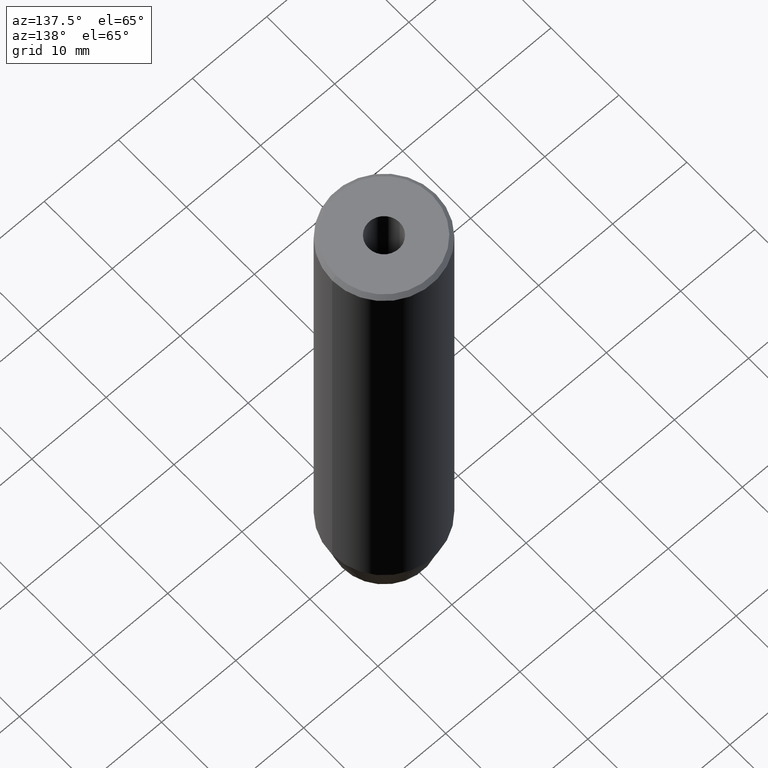
[diagram: clean part render]
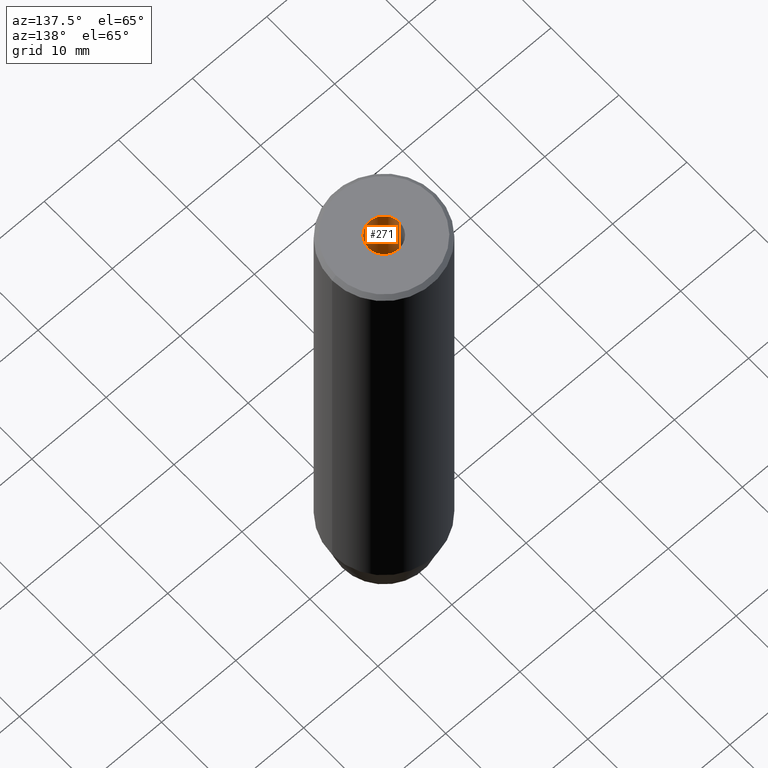
[diagram: same view with one face highlighted and labeled with its STEP entity id]
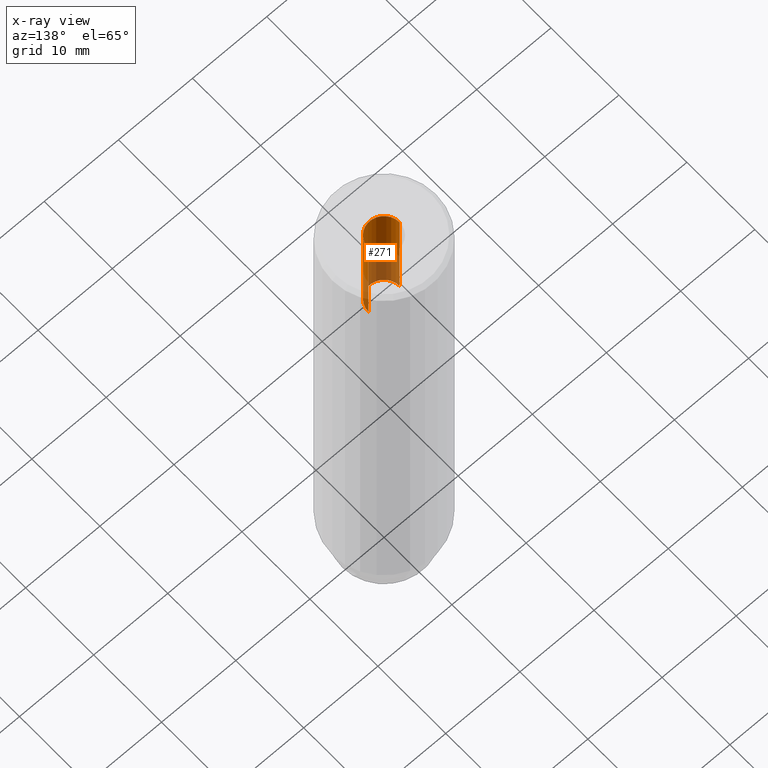
[diagram: x-ray of the same camera — body ghosted, the highlighted face saturated]
A machine part, auxiliary view. The second image highlights one B-rep face of the part: STEP entity #271.
The next image is the same camera in x-ray: the body ghosted, the highlighted face saturated — about 42% of this face is hidden behind the body in this view.
In plain terms, the highlighted cylindrical surface (edge-blend (fillet) strip) has radius 2.1 mm, axis along (-0, -0, 1).
Its self-contained STEP definition (entity closure, byte-faithful):
#1 = VECTOR ( 'NONE', #399, 1000.000000000000000 ) ;
#10 = EDGE_CURVE ( 'NONE', #421, #469, #246, .T. ) ;
#47 = DIRECTION ( 'NONE',  ( 1.000000000000000000, 0.000000000000000000, 0.000000000000000000 ) ) ;
#75 = DIRECTION ( 'NONE',  ( -0.000000000000000000, -0.000000000000000000, 1.000000000000000000 ) ) ;
#84 = CARTESIAN_POINT ( 'NONE',  ( 2.099999999999996980, 0.000000000000000000, -15.00000000000000000 ) ) ;
#89 = DIRECTION ( 'NONE',  ( -0.000000000000000000, -0.000000000000000000, 1.000000000000000000 ) ) ;
#96 = AXIS2_PLACEMENT_3D ( 'NONE', #400, #313, #47 ) ;
#118 = FACE_OUTER_BOUND ( 'NONE', #385, .T. ) ;
#151 = VERTEX_POINT ( 'NONE', #263 ) ;
#156 = CARTESIAN_POINT ( 'NONE',  ( 2.099999999999997868, 0.000000000000000000, 0.000000000000000000 ) ) ;
#178 = CARTESIAN_POINT ( 'NONE',  ( 2.099999999999998757, 0.000000000000000000, -1.990051048614449116E-16 ) ) ;
#204 = ORIENTED_EDGE ( 'NONE', *, *, #456, .F. ) ;
#209 = DIRECTION ( 'NONE',  ( -0.000000000000000000, -0.000000000000000000, 1.000000000000000000 ) ) ;
#226 = CARTESIAN_POINT ( 'NONE',  ( -2.099999999999998757, 2.571758278209439985E-16, -1.990051048614449116E-16 ) ) ;
#246 = LINE ( 'NONE', #156, #436 ) ;
#252 = CIRCLE ( 'NONE', #561, 2.099999999999998757 ) ;
#263 = CARTESIAN_POINT ( 'NONE',  ( -2.099999999999996980, 2.571758278209438013E-16, -15.00000000000000000 ) ) ;
#271 = ADVANCED_FACE ( 'NONE', ( #118 ), #305, .F. ) ;
#305 = CYLINDRICAL_SURFACE ( 'NONE', #344, 2.099999999999997868 ) ;
#306 = CARTESIAN_POINT ( 'NONE',  ( 0.000000000000000000, 0.000000000000000000, -1.990051048614449116E-16 ) ) ;
#313 = DIRECTION ( 'NONE',  ( -0.000000000000000000, -0.000000000000000000, 1.000000000000000000 ) ) ;
#344 = AXIS2_PLACEMENT_3D ( 'NONE', #479, #209, #396 ) ;
#355 = CIRCLE ( 'NONE', #96, 2.099999999999996980 ) ;
#358 = CARTESIAN_POINT ( 'NONE',  ( -2.099999999999997868, 2.571758278209438999E-16, 0.000000000000000000 ) ) ;
#385 = EDGE_LOOP ( 'NONE', ( #204, #463, #452, #413 ) ) ;
#396 = DIRECTION ( 'NONE',  ( 1.000000000000000000, 0.000000000000000000, 0.000000000000000000 ) ) ;
#398 = EDGE_CURVE ( 'NONE', #151, #543, #451, .T. ) ;
#399 = DIRECTION ( 'NONE',  ( -0.000000000000000000, -0.000000000000000000, 1.000000000000000000 ) ) ;
#400 = CARTESIAN_POINT ( 'NONE',  ( 0.000000000000000000, 0.000000000000000000, -15.00000000000000000 ) ) ;
#413 = ORIENTED_EDGE ( 'NONE', *, *, #10, .F. ) ;
#421 = VERTEX_POINT ( 'NONE', #84 ) ;
#436 = VECTOR ( 'NONE', #75, 1000.000000000000000 ) ;
#438 = EDGE_CURVE ( 'NONE', #543, #469, #252, .T. ) ;
#451 = LINE ( 'NONE', #358, #1 ) ;
#452 = ORIENTED_EDGE ( 'NONE', *, *, #438, .T. ) ;
#456 = EDGE_CURVE ( 'NONE', #151, #421, #355, .T. ) ;
#463 = ORIENTED_EDGE ( 'NONE', *, *, #398, .T. ) ;
#469 = VERTEX_POINT ( 'NONE', #178 ) ;
#479 = CARTESIAN_POINT ( 'NONE',  ( 0.000000000000000000, 0.000000000000000000, 0.000000000000000000 ) ) ;
#543 = VERTEX_POINT ( 'NONE', #226 ) ;
#561 = AXIS2_PLACEMENT_3D ( 'NONE', #306, #89, #579 ) ;
#579 = DIRECTION ( 'NONE',  ( 1.000000000000000000, 0.000000000000000000, 0.000000000000000000 ) ) ;